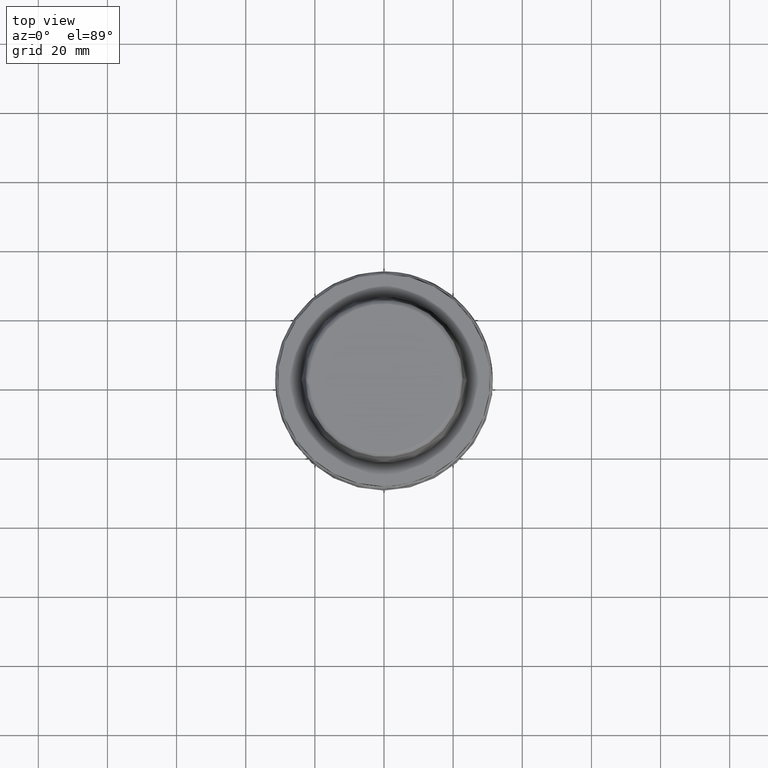
[diagram: clean part render]
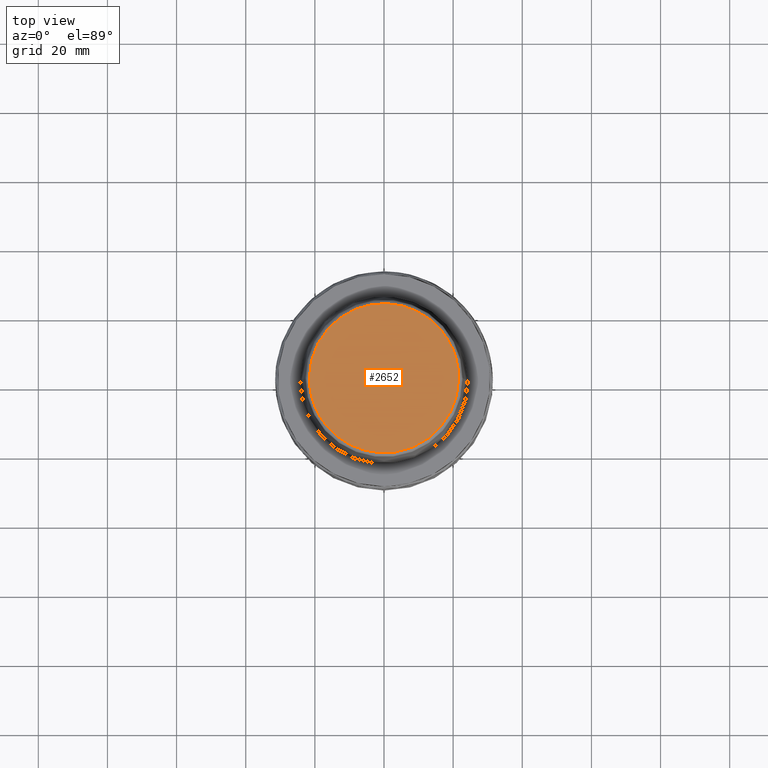
[diagram: same view with one face highlighted and labeled with its STEP entity id]
A machine part, top view. The second image highlights one B-rep face of the part: STEP entity #2652.
In plain terms, the highlighted planar face has unit normal (0, 0, -1).
Its self-contained STEP definition (entity closure, byte-faithful):
#76 = CARTESIAN_POINT ( 'NONE',  ( -21.58108272605779000, 43.16216545311558400, 31.89999999999999900 ) ) ;
#207 = CARTESIAN_POINT ( 'NONE',  ( 21.58108272605779000, 43.16216545311558400, 31.89999999999999900 ) ) ;
#219 = CARTESIAN_POINT ( 'NONE',  ( 21.58108272254605700, 0.0000000000000000000, 31.89999999999999100 ) ) ;
#294 = FACE_OUTER_BOUND ( 'NONE', #803, .T. ) ;
#330 = VERTEX_POINT ( 'NONE', #489 ) ;
#427 = EDGE_CURVE ( 'NONE', #2596, #330, #1136, .T. ) ;
#489 = CARTESIAN_POINT ( 'NONE',  ( -21.58108272254605700, 0.0000000000000000000, 31.89999999999999100 ) ) ;
#540 = AXIS2_PLACEMENT_3D ( 'NONE', #2689, #848, #795 ) ;
#680 = PLANE ( 'NONE',  #540 ) ;
#795 = DIRECTION ( 'NONE',  ( -1.000000000000000000, 0.0000000000000000000, 0.0000000000000000000 ) ) ;
#803 = EDGE_LOOP ( 'NONE', ( #2428, #1258 ) ) ;
#848 = DIRECTION ( 'NONE',  ( 0.0000000000000000000, 0.0000000000000000000, -1.000000000000000000 ) ) ;
#1123 = EDGE_CURVE ( 'NONE', #330, #2596, #2396, .T. ) ;
#1136 =( BOUNDED_CURVE ( )  B_SPLINE_CURVE ( 3, ( #1297, #2560, #2256, #1525 ),
 .UNSPECIFIED., .F., .T. ) 
 B_SPLINE_CURVE_WITH_KNOTS ( ( 4, 4 ),
 ( 0.0000000000000000000, 1.000000000000000000 ),
 .UNSPECIFIED. ) 
 CURVE ( )  GEOMETRIC_REPRESENTATION_ITEM ( )  RATIONAL_B_SPLINE_CURVE ( ( 0.9580048708916622000, 0.3193349569638873100, 0.3193349569638873100, 0.9580048708916622000 ) ) 
 REPRESENTATION_ITEM ( '' )  );
#1258 = ORIENTED_EDGE ( 'NONE', *, *, #427, .F. ) ;
#1297 = CARTESIAN_POINT ( 'NONE',  ( 21.58108272254605700, 0.0000000000000000000, 31.89999999999999100 ) ) ;
#1525 = CARTESIAN_POINT ( 'NONE',  ( -21.58108272254605700, 0.0000000000000000000, 31.89999999999999100 ) ) ;
#1749 = CARTESIAN_POINT ( 'NONE',  ( 21.58108272254605700, 0.0000000000000000000, 31.89999999999999100 ) ) ;
#2052 = CARTESIAN_POINT ( 'NONE',  ( -21.58108272254605700, 0.0000000000000000000, 31.89999999999999100 ) ) ;
#2256 = CARTESIAN_POINT ( 'NONE',  ( -21.58108272605778000, -43.16216545311556300, 31.90000000000000600 ) ) ;
#2396 =( BOUNDED_CURVE ( )  B_SPLINE_CURVE ( 3, ( #2052, #76, #207, #219 ),
 .UNSPECIFIED., .F., .F. ) 
 B_SPLINE_CURVE_WITH_KNOTS ( ( 4, 4 ),
 ( 0.0000000000000000000, 1.000000000000000000 ),
 .UNSPECIFIED. ) 
 CURVE ( )  GEOMETRIC_REPRESENTATION_ITEM ( )  RATIONAL_B_SPLINE_CURVE ( ( 0.9580048708916588700, 0.3193349569638859700, 0.3193349569638859700, 0.9580048708916588700 ) ) 
 REPRESENTATION_ITEM ( '' )  );
#2428 = ORIENTED_EDGE ( 'NONE', *, *, #1123, .F. ) ;
#2560 = CARTESIAN_POINT ( 'NONE',  ( 21.58108272605778000, -43.16216545311556300, 31.90000000000000600 ) ) ;
#2596 = VERTEX_POINT ( 'NONE', #1749 ) ;
#2652 = ADVANCED_FACE ( 'NONE', ( #294 ), #680, .F. ) ;
#2689 = CARTESIAN_POINT ( 'NONE',  ( 21.84005571900000600, -21.84007310600000200, 31.89999999999999900 ) ) ;